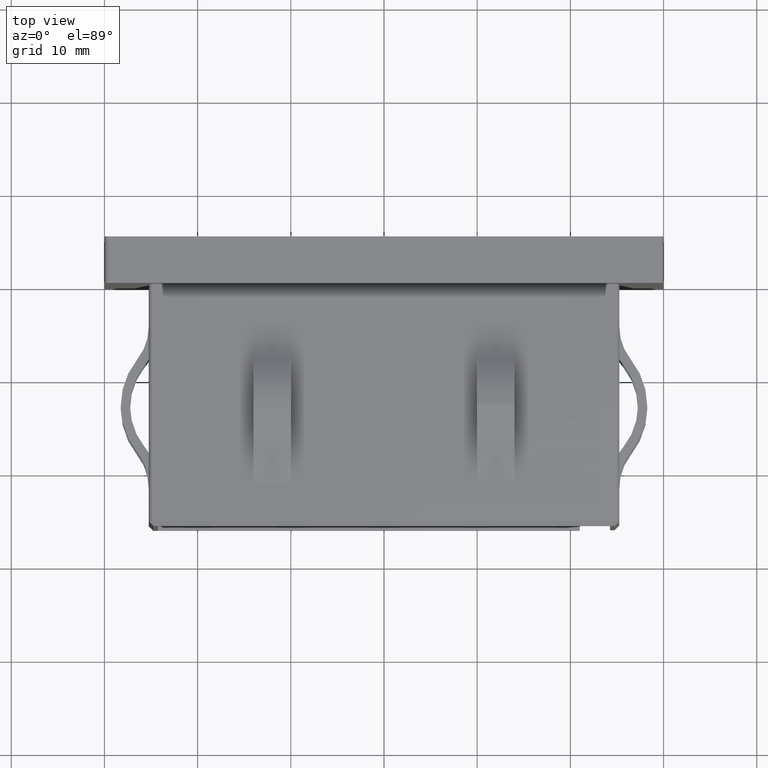
[diagram: clean part render]
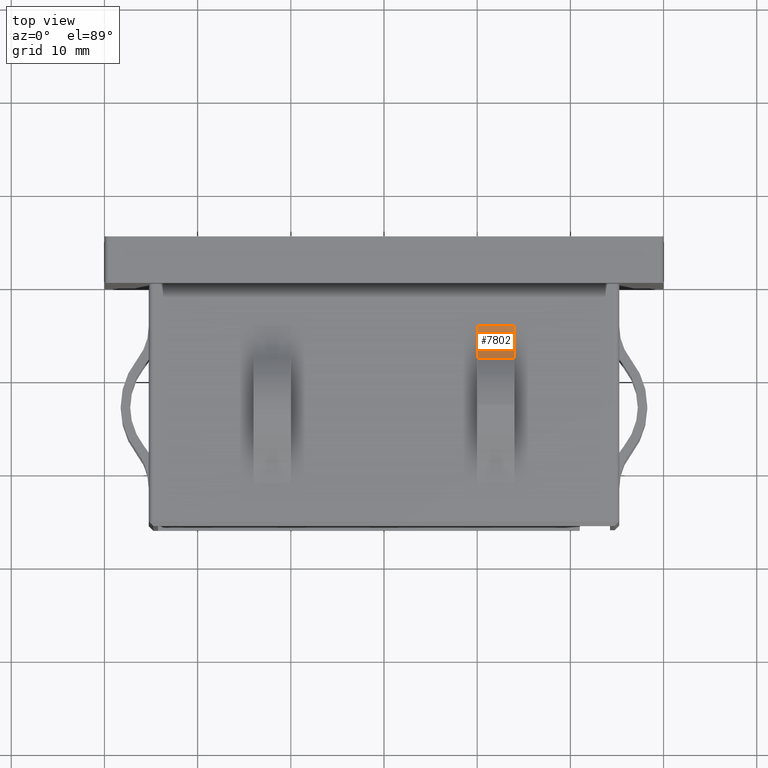
[diagram: same view with one face highlighted and labeled with its STEP entity id]
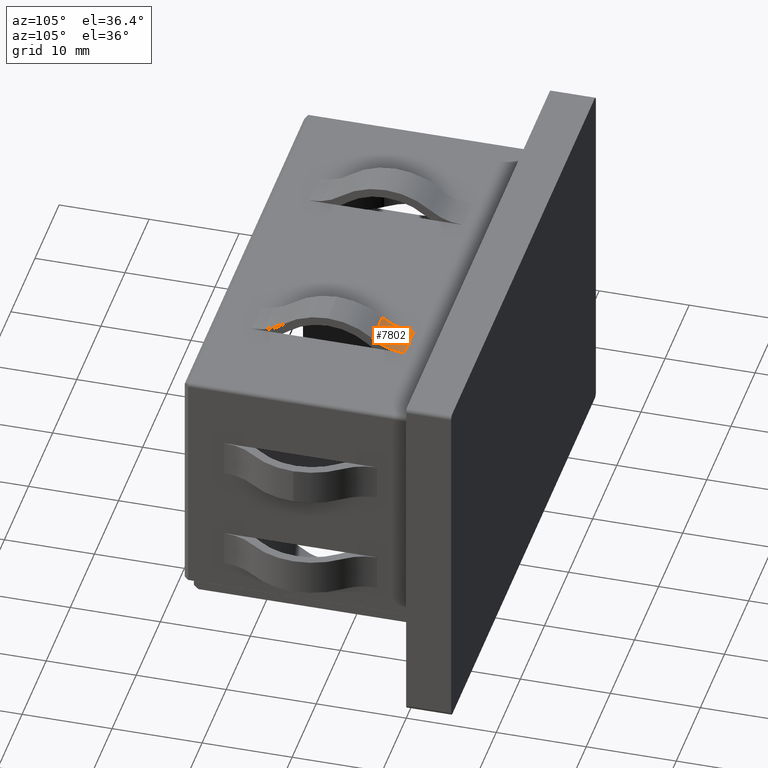
[diagram: same view with one face highlighted and labeled with its STEP entity id]
A machine part, top view. The second image highlights one B-rep face of the part: STEP entity #7802.
A second angle (auxiliary view) of the same face is appended — the face is thin or edge-on in the first view.
In plain terms, the highlighted cylindrical surface (partial cylindrical patch) has radius 5.576 mm, axis along (-1, -0, 0).
Its self-contained STEP definition (entity closure, byte-faithful):
#240 = CARTESIAN_POINT ( 'NONE',  ( 14.00000000000000400, -4.500000000000003600, 15.24999999999999600 ) ) ;
#910 = LINE ( 'NONE', #11643, #10340 ) ;
#986 = CARTESIAN_POINT ( 'NONE',  ( 10.00000000000000400, -7.999999921829561000, 16.48529410141790000 ) ) ;
#1646 = EDGE_CURVE ( 'NONE', #11938, #12073, #7023, .T. ) ;
#2688 = EDGE_CURVE ( 'NONE', #11834, #11938, #11168, .T. ) ;
#2839 = DIRECTION ( 'NONE',  ( -1.000000000000000000, -0.0000000000000000000, 1.927470528863118800E-016 ) ) ;
#2877 = CYLINDRICAL_SURFACE ( 'NONE', #12709, 5.575980227701403900 ) ;
#3821 = DIRECTION ( 'NONE',  ( -1.000000000000000000, -0.0000000000000000000, 1.772454025855359500E-016 ) ) ;
#4112 = DIRECTION ( 'NONE',  ( 3.111064611310351300E-016, 0.0000000000000000000, 1.000000000000000000 ) ) ;
#5281 = DIRECTION ( 'NONE',  ( -3.111064611310351300E-016, 0.0000000000000000000, -1.000000000000000000 ) ) ;
#5442 = ORIENTED_EDGE ( 'NONE', *, *, #12468, .F. ) ;
#6008 = DIRECTION ( 'NONE',  ( -1.000000000000000000, -0.0000000000000000000, 1.927470528863118800E-016 ) ) ;
#6100 = ORIENTED_EDGE ( 'NONE', *, *, #1646, .T. ) ;
#6734 = VERTEX_POINT ( 'NONE', #13005 ) ;
#6816 = CIRCLE ( 'NONE', #13327, 5.575980227701403900 ) ;
#7023 = CIRCLE ( 'NONE', #16707, 5.575980227701403900 ) ;
#7058 = CARTESIAN_POINT ( 'NONE',  ( 14.00000000000000400, -4.500000000000003600, 20.82598022770140400 ) ) ;
#7511 = EDGE_CURVE ( 'NONE', #6734, #12073, #910, .T. ) ;
#7802 = ADVANCED_FACE ( 'NONE', ( #13652 ), #2877, .F. ) ;
#8944 = CARTESIAN_POINT ( 'NONE',  ( 10.00000000000000400, -4.499999999999997300, 15.24999999999999300 ) ) ;
#10340 = VECTOR ( 'NONE', #17181, 1000.000000000000000 ) ;
#10501 = VECTOR ( 'NONE', #6008, 1000.000000000000000 ) ;
#11168 = LINE ( 'NONE', #17390, #10501 ) ;
#11643 = CARTESIAN_POINT ( 'NONE',  ( 14.00000000000000400, -7.999999921829561000, 16.48529410141790000 ) ) ;
#11834 = VERTEX_POINT ( 'NONE', #240 ) ;
#11938 = VERTEX_POINT ( 'NONE', #8944 ) ;
#12073 = VERTEX_POINT ( 'NONE', #986 ) ;
#12269 = CARTESIAN_POINT ( 'NONE',  ( 14.00000000000000400, -4.500000000000003600, 20.82598022770140400 ) ) ;
#12468 = EDGE_CURVE ( 'NONE', #11834, #6734, #6816, .T. ) ;
#12709 = AXIS2_PLACEMENT_3D ( 'NONE', #7058, #2839, #4112 ) ;
#13005 = CARTESIAN_POINT ( 'NONE',  ( 14.00000000000000400, -7.999999921829561000, 16.48529410141790000 ) ) ;
#13327 = AXIS2_PLACEMENT_3D ( 'NONE', #12269, #3821, #5281 ) ;
#13374 = ORIENTED_EDGE ( 'NONE', *, *, #7511, .F. ) ;
#13652 = FACE_OUTER_BOUND ( 'NONE', #14784, .T. ) ;
#14765 = CARTESIAN_POINT ( 'NONE',  ( 10.00000000000000400, -4.500000000000003600, 20.82598022770140400 ) ) ;
#14784 = EDGE_LOOP ( 'NONE', ( #6100, #13374, #5442, #16075 ) ) ;
#16075 = ORIENTED_EDGE ( 'NONE', *, *, #2688, .T. ) ;
#16134 = DIRECTION ( 'NONE',  ( -3.111064611310351300E-016, 0.0000000000000000000, -1.000000000000000000 ) ) ;
#16707 = AXIS2_PLACEMENT_3D ( 'NONE', #14765, #17812, #16134 ) ;
#17181 = DIRECTION ( 'NONE',  ( -1.000000000000000000, -0.0000000000000000000, 1.927470528863118800E-016 ) ) ;
#17390 = CARTESIAN_POINT ( 'NONE',  ( 14.00000000000000400, -4.499999999999997300, 15.24999999999999500 ) ) ;
#17812 = DIRECTION ( 'NONE',  ( -1.000000000000000000, -0.0000000000000000000, 1.772454025855359500E-016 ) ) ;